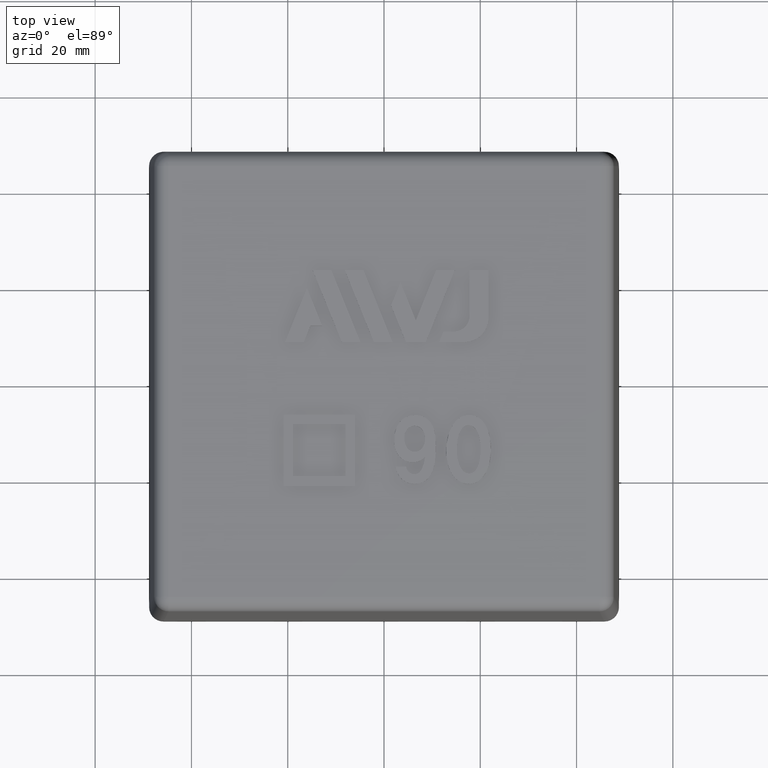
[diagram: clean part render]
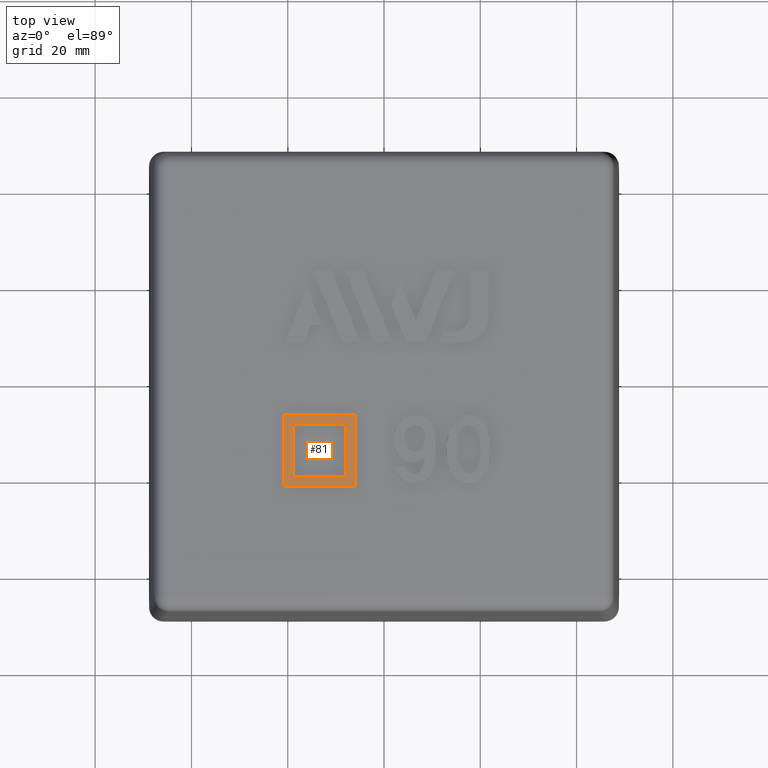
[diagram: same view with one face highlighted and labeled with its STEP entity id]
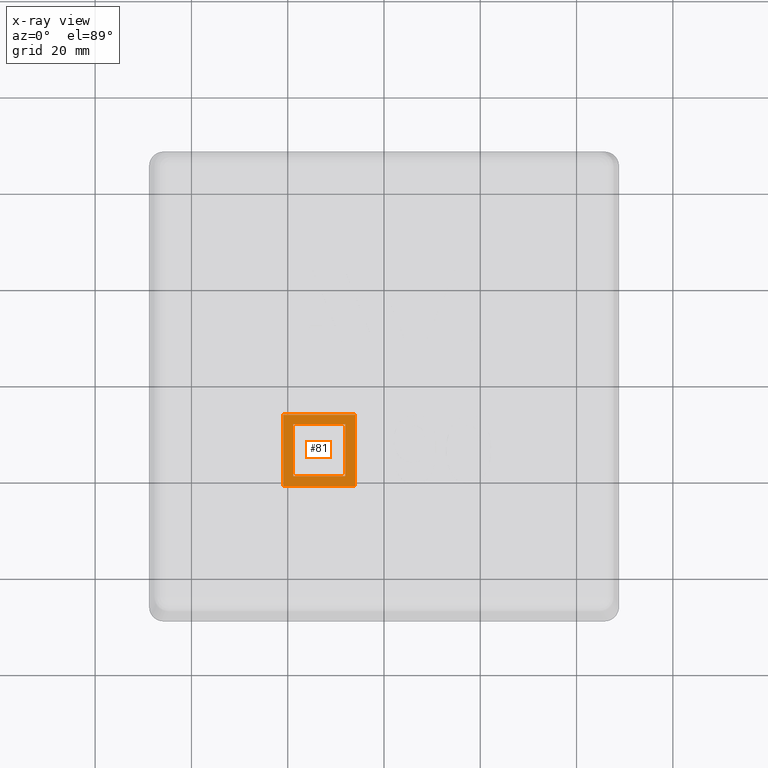
[diagram: x-ray of the same camera — body ghosted, the highlighted face saturated]
A machine part, top view. The second image highlights one B-rep face of the part: STEP entity #81.
The next image is the same camera in x-ray: the body ghosted, the highlighted face saturated — about 0% of this face is hidden behind the body in this view.
In plain terms, the highlighted planar face has unit normal (0, 0, 1).
Its self-contained STEP definition (entity closure, byte-faithful):
#81 = ADVANCED_FACE( '', ( #173, #174 ), #175, .T. );
#173 = FACE_OUTER_BOUND( '', #345, .T. );
#174 = FACE_BOUND( '', #346, .T. );
#175 = PLANE( '', #347 );
#345 = EDGE_LOOP( '', ( #607, #608, #609, #610 ) );
#346 = EDGE_LOOP( '', ( #611, #612, #613, #614 ) );
#347 = AXIS2_PLACEMENT_3D( '', #615, #616, #617 );
#607 = ORIENTED_EDGE( '', *, *, #1208, .F. );
#608 = ORIENTED_EDGE( '', *, *, #1209, .F. );
#609 = ORIENTED_EDGE( '', *, *, #1210, .F. );
#610 = ORIENTED_EDGE( '', *, *, #1211, .F. );
#611 = ORIENTED_EDGE( '', *, *, #1212, .F. );
#612 = ORIENTED_EDGE( '', *, *, #1213, .F. );
#613 = ORIENTED_EDGE( '', *, *, #1214, .F. );
#614 = ORIENTED_EDGE( '', *, *, #1215, .F. );
#615 = CARTESIAN_POINT( '', ( -20.9268713068182, -14.3681000000000, 63.5000000000000 ) );
#616 = DIRECTION( '', ( 0.000000000000000, 0.000000000000000, 1.00000000000000 ) );
#617 = DIRECTION( '', ( 0.000000000000000, -1.00000000000000, 0.000000000000000 ) );
#1208 = EDGE_CURVE( '', #1435, #1436, #1437, .T. );
#1209 = EDGE_CURVE( '', #1438, #1435, #1439, .T. );
#1210 = EDGE_CURVE( '', #1440, #1438, #1441, .T. );
#1211 = EDGE_CURVE( '', #1436, #1440, #1442, .T. );
#1212 = EDGE_CURVE( '', #1443, #1444, #1445, .T. );
#1213 = EDGE_CURVE( '', #1446, #1443, #1447, .T. );
#1214 = EDGE_CURVE( '', #1448, #1446, #1449, .T. );
#1215 = EDGE_CURVE( '', #1444, #1448, #1450, .T. );
#1435 = VERTEX_POINT( '', #1863 );
#1436 = VERTEX_POINT( '', #1864 );
#1437 = B_SPLINE_CURVE_WITH_KNOTS( '', 2, ( #1865, #1866, #1867 ), .UNSPECIFIED., .F., .F., ( 3, 3 ), ( 0.000000000000000, 1.00000000000000 ), .UNSPECIFIED. );
#1438 = VERTEX_POINT( '', #1868 );
#1439 = B_SPLINE_CURVE_WITH_KNOTS( '', 2, ( #1869, #1870, #1871 ), .UNSPECIFIED., .F., .F., ( 3, 3 ), ( 3.00000000000000, 4.00000000000000 ), .UNSPECIFIED. );
#1440 = VERTEX_POINT( '', #1872 );
#1441 = B_SPLINE_CURVE_WITH_KNOTS( '', 2, ( #1873, #1874, #1875 ), .UNSPECIFIED., .F., .F., ( 3, 3 ), ( 2.00000000000000, 3.00000000000000 ), .UNSPECIFIED. );
#1442 = B_SPLINE_CURVE_WITH_KNOTS( '', 2, ( #1876, #1877, #1878 ), .UNSPECIFIED., .F., .F., ( 3, 3 ), ( 1.00000000000000, 2.00000000000000 ), .UNSPECIFIED. );
#1443 = VERTEX_POINT( '', #1879 );
#1444 = VERTEX_POINT( '', #1880 );
#1445 = B_SPLINE_CURVE_WITH_KNOTS( '', 2, ( #1881, #1882, #1883 ), .UNSPECIFIED., .F., .F., ( 3, 3 ), ( 0.000000000000000, 1.00000000000000 ), .UNSPECIFIED. );
#1446 = VERTEX_POINT( '', #1884 );
#1447 = B_SPLINE_CURVE_WITH_KNOTS( '', 2, ( #1885, #1886, #1887 ), .UNSPECIFIED., .F., .F., ( 3, 3 ), ( 3.00000000000000, 4.00000000000000 ), .UNSPECIFIED. );
#1448 = VERTEX_POINT( '', #1888 );
#1449 = B_SPLINE_CURVE_WITH_KNOTS( '', 2, ( #1889, #1890, #1891 ), .UNSPECIFIED., .F., .F., ( 3, 3 ), ( 2.00000000000000, 3.00000000000000 ), .UNSPECIFIED. );
#1450 = B_SPLINE_CURVE_WITH_KNOTS( '', 2, ( #1892, #1893, #1894 ), .UNSPECIFIED., .F., .F., ( 3, 3 ), ( 1.00000000000000, 2.00000000000000 ), .UNSPECIFIED. );
#1863 = CARTESIAN_POINT( '', ( -20.9268713068182, -21.7999181818182, 63.5000000000000 ) );
#1864 = CARTESIAN_POINT( '', ( -20.9268713068182, -6.93628181818191, 63.5000000000000 ) );
#1865 = CARTESIAN_POINT( '', ( -20.9268713068182, -21.7999181818182, 63.5000000000000 ) );
#1866 = CARTESIAN_POINT( '', ( -20.9268713068182, -14.3681000000000, 63.5000000000000 ) );
#1867 = CARTESIAN_POINT( '', ( -20.9268713068182, -6.93628181818191, 63.5000000000000 ) );
#1868 = CARTESIAN_POINT( '', ( -5.99505312500014, -21.7999181818182, 63.5000000000000 ) );
#1869 = CARTESIAN_POINT( '', ( -5.99505312500014, -21.7999181818182, 63.5000000000000 ) );
#1870 = CARTESIAN_POINT( '', ( -13.4609622159092, -21.7999181818182, 63.5000000000000 ) );
#1871 = CARTESIAN_POINT( '', ( -20.9268713068182, -21.7999181818182, 63.5000000000000 ) );
#1872 = CARTESIAN_POINT( '', ( -5.99505312500014, -6.93628181818191, 63.5000000000000 ) );
#1873 = CARTESIAN_POINT( '', ( -5.99505312500014, -6.93628181818191, 63.5000000000000 ) );
#1874 = CARTESIAN_POINT( '', ( -5.99505312500014, -14.3681000000000, 63.5000000000000 ) );
#1875 = CARTESIAN_POINT( '', ( -5.99505312500014, -21.7999181818182, 63.5000000000000 ) );
#1876 = CARTESIAN_POINT( '', ( -20.9268713068182, -6.93628181818191, 63.5000000000000 ) );
#1877 = CARTESIAN_POINT( '', ( -13.4609622159092, -6.93628181818191, 63.5000000000000 ) );
#1878 = CARTESIAN_POINT( '', ( -5.99505312500014, -6.93628181818191, 63.5000000000000 ) );
#1879 = CARTESIAN_POINT( '', ( -18.8814167613637, -19.7544636363637, 63.5000000000000 ) );
#1880 = CARTESIAN_POINT( '', ( -8.04050767045467, -19.7544636363637, 63.5000000000000 ) );
#1881 = CARTESIAN_POINT( '', ( -18.8814167613637, -19.7544636363637, 63.5000000000000 ) );
#1882 = CARTESIAN_POINT( '', ( -13.4609622159092, -19.7544636363637, 63.5000000000000 ) );
#1883 = CARTESIAN_POINT( '', ( -8.04050767045467, -19.7544636363637, 63.5000000000000 ) );
#1884 = CARTESIAN_POINT( '', ( -18.8814167613637, -8.91355454545463, 63.5000000000000 ) );
#1885 = CARTESIAN_POINT( '', ( -18.8814167613637, -8.91355454545463, 63.5000000000000 ) );
#1886 = CARTESIAN_POINT( '', ( -18.8814167613637, -14.3340090909091, 63.5000000000000 ) );
#1887 = CARTESIAN_POINT( '', ( -18.8814167613637, -19.7544636363637, 63.5000000000000 ) );
#1888 = CARTESIAN_POINT( '', ( -8.04050767045467, -8.91355454545463, 63.5000000000000 ) );
#1889 = CARTESIAN_POINT( '', ( -8.04050767045467, -8.91355454545463, 63.5000000000000 ) );
#1890 = CARTESIAN_POINT( '', ( -13.4609622159092, -8.91355454545463, 63.5000000000000 ) );
#1891 = CARTESIAN_POINT( '', ( -18.8814167613637, -8.91355454545463, 63.5000000000000 ) );
#1892 = CARTESIAN_POINT( '', ( -8.04050767045467, -19.7544636363637, 63.5000000000000 ) );
#1893 = CARTESIAN_POINT( '', ( -8.04050767045467, -14.3340090909091, 63.5000000000000 ) );
#1894 = CARTESIAN_POINT( '', ( -8.04050767045467, -8.91355454545463, 63.5000000000000 ) );